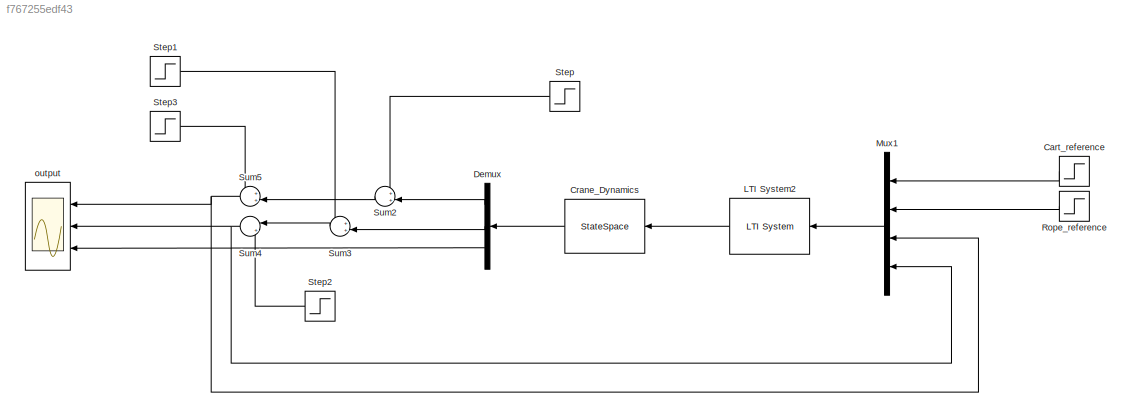
MODEL slx_f767255edf43
KIND model
CONFIG AbsTol = auto
CONFIG EnableMultiTasking = off
CONFIG FixedStep = auto
CONFIG MaxStep = auto
CONFIG MinStep = auto
CONFIG RelTol = 1e-3
CONFIG SampleTimeConstraint = Unconstrained
CONFIG Solver = VariableStepAuto
CONFIG SolverName = VariableStepAuto
CONFIG StartTime = 0.0
CONFIG StopTime = 450
BLOCK [Step] Cart_reference
  After = 5
  SampleTime = 0
BLOCK [StateSpace] Crane_Dynamics
  A = A_new
  B = B_new
  C = C_new
  D = D_new
  Ports = [1, 1]
  X0 = 0
BLOCK [Demux] Demux
  DisplayOption = bar
  Outputs = 3
  Ports = [1, 3]
BLOCK [Reference] LTI System2  REF=cstblocks/LTI System
  Ports = [1, 1]
  SourceBlock = cstblocks/LTI System
  SourceProductBaseCode = CT
  SourceProductName = Control System Toolbox
  SourceType = LTI Block
BLOCK [Mux] Mux1
  DisplayOption = bar
  Ports = [4, 1]
BLOCK [Step] Rope_reference
  After = 2
  SampleTime = 0
BLOCK [Step] Step
  After = 5
  SampleTime = 0
  Time = 20
BLOCK [Step] Step1
  After = -8
  SampleTime = 0
  Time = 10
BLOCK [Step] Step2
  After = 10
  SampleTime = 0
  Time = 5
BLOCK [Step] Step3
  After = 15
  SampleTime = 0
  Time = 35
BLOCK [Sum] Sum2
  IconShape = round
  InputSameDT = off
  Inputs = ++|
  OutDataTypeStr = Inherit: Inherit via internal rule
  Ports = [2, 1]
  SaturateOnIntegerOverflow = off
BLOCK [Sum] Sum3
  IconShape = round
  InputSameDT = off
  Inputs = ++|
  OutDataTypeStr = Inherit: Inherit via internal rule
  Ports = [2, 1]
  SaturateOnIntegerOverflow = off
BLOCK [Sum] Sum4
  IconShape = round
  InputSameDT = off
  Inputs = |++
  OutDataTypeStr = Inherit: Inherit via internal rule
  Ports = [2, 1]
  SaturateOnIntegerOverflow = off
BLOCK [Sum] Sum5
  IconShape = round
  InputSameDT = off
  Inputs = ++|
  OutDataTypeStr = Inherit: Inherit via internal rule
  Ports = [2, 1]
  SaturateOnIntegerOverflow = off
BLOCK [Scope] output
  NumInputPorts = 3
  Ports = [3]
  ScopeSpecificationString = Simulink.scopes.TimeScopeBlockCfg('CurrentConfiguration', extmgr.ConfigurationSet(extmgr.Configuration('Core','General UI',true,'FigureColor',[0.941176470588235 0.941176470588235 0.941176470588235]),extmgr.Configuration('Core','Source UI',true),extmgr.Configuration('Sources','WiredSimulink',true),extmgr.Configuration('Visuals','Time Domain',true,'SerializedDisplays',{struct('MinYLimReal','-10.5948...<+3117ch>
LINE Cart_reference:1 -> Mux1:1
LINE Crane_Dynamics:1 -> Demux:1
LINE Demux:1 -> Sum2:2
LINE Demux:2 -> Sum3:2
LINE Demux:3 -> output:3
LINE LTI System2:1 -> Crane_Dynamics:1
LINE Mux1:1 -> LTI System2:1
LINE Rope_reference:1 -> Mux1:2
LINE Step1:1 -> Sum3:1
LINE Step2:1 -> Sum4:2
LINE Step3:1 -> Sum5:1
LINE Step:1 -> Sum2:1
LINE Sum2:1 -> Sum5:2
LINE Sum3:1 -> Sum4:1
NET Sum4:1 -> Mux1:4, output:2
NET Sum5:1 -> Mux1:3, output:1
note: NET lines group one-source signal fan-out (src -> all destinations, sorted); 1:1 wires keep LINE
